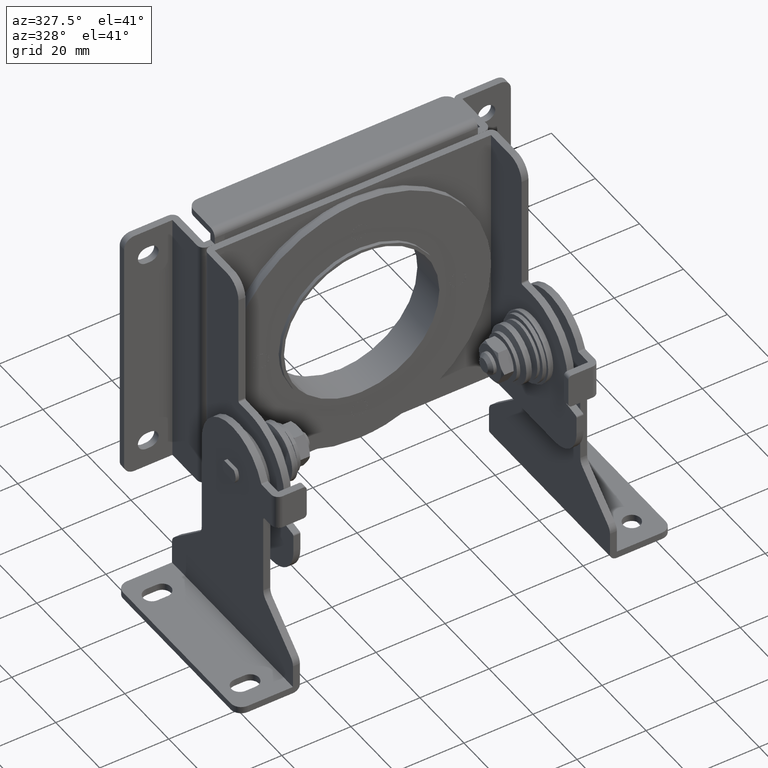
[diagram: clean part render]
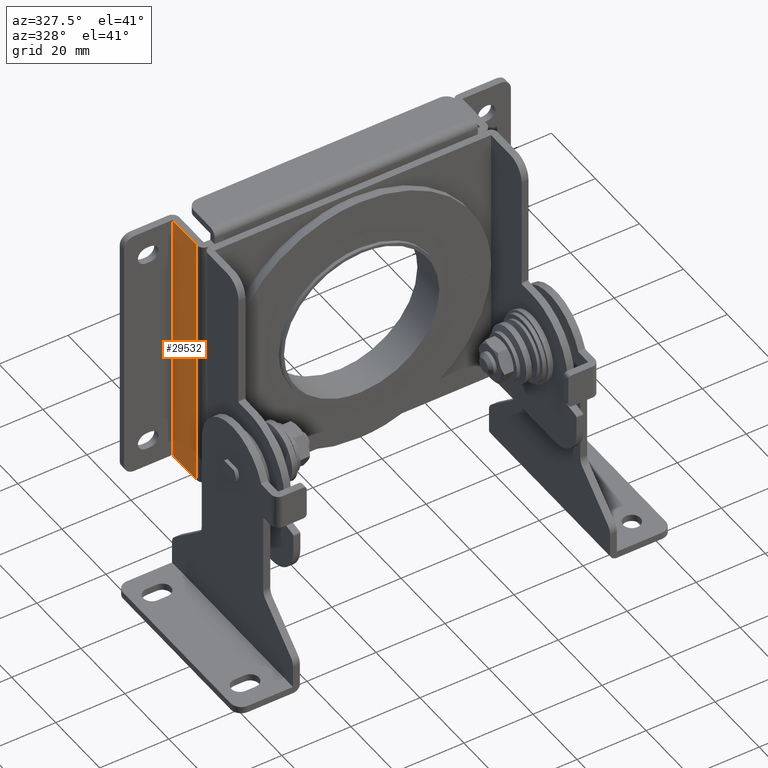
[diagram: same view with one face highlighted and labeled with its STEP entity id]
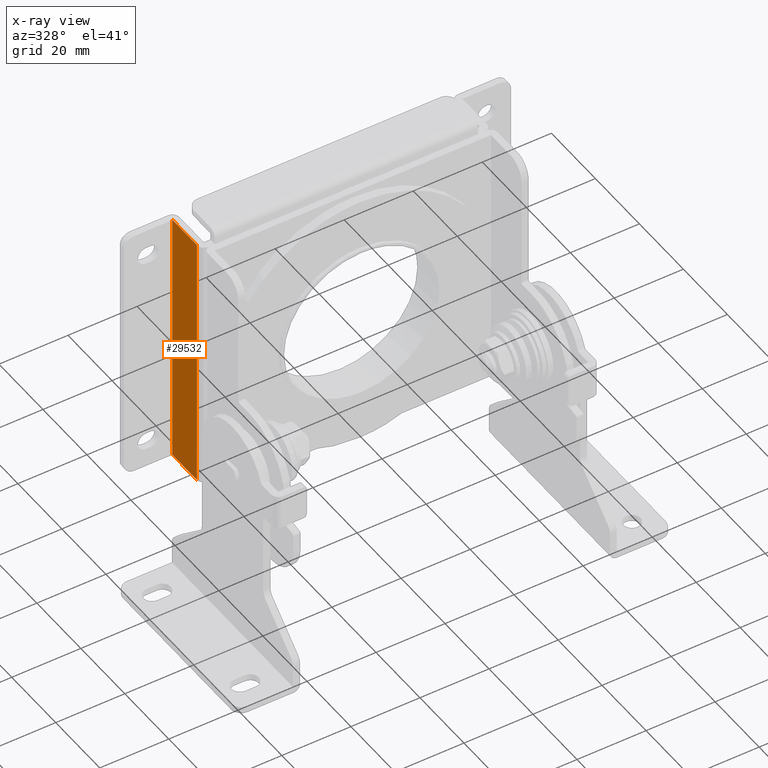
[diagram: x-ray of the same camera — body ghosted, the highlighted face saturated]
A machine part, auxiliary view. The second image highlights one B-rep face of the part: STEP entity #29532.
The next image is the same camera in x-ray: the body ghosted, the highlighted face saturated — about 0% of this face is hidden behind the body in this view.
In plain terms, the highlighted face is a freeform B-spline surface patch.
Its self-contained STEP definition (entity closure, byte-faithful):
#29497=CARTESIAN_POINT('',(-42.0,-13.654444978486049,-41.796199852697249));
#29498=CARTESIAN_POINT('',(-42.0,-13.654444978486049,41.796201891176104));
#29499=CARTESIAN_POINT('',(-42.0,-1.445554723788754,-41.796199852697249));
#29500=CARTESIAN_POINT('',(-42.0,-1.445554723788754,41.796201891176104));
#29501=B_SPLINE_SURFACE_WITH_KNOTS('',1,1,((#29497,#29499),(#29498,#29500)),.UNSPECIFIED.,.F.,.F.,.U.,(2,2),(2,2),(0.0,83.592401743873353),(0.0,12.208890254697300),.UNSPECIFIED.);
#29502=CARTESIAN_POINT('',(-42.0,-13.100000000000000,-38.0));
#29503=VERTEX_POINT('',#29502);
#29504=CARTESIAN_POINT('',(-42.0,-2.0,-38.0));
#29505=VERTEX_POINT('',#29504);
#29506=CARTESIAN_POINT('',(-42.0,-13.100000000000000,-38.0));
#29507=CARTESIAN_POINT('',(-42.0,-2.0,-38.0));
#29508=QUASI_UNIFORM_CURVE('',1,(#29506,#29507),.UNSPECIFIED.,.F.,.U.);
#29509=EDGE_CURVE('',#29503,#29505,#29508,.T.);
#29510=ORIENTED_EDGE('',*,*,#29509,.F.);
#29511=CARTESIAN_POINT('',(-42.0,-13.100000000000000,38.0));
#29512=VERTEX_POINT('',#29511);
#29513=CARTESIAN_POINT('',(-42.0,-13.100000000000000,38.0));
#29514=CARTESIAN_POINT('',(-42.0,-13.100000000000000,-38.0));
#29515=QUASI_UNIFORM_CURVE('',1,(#29513,#29514),.UNSPECIFIED.,.F.,.U.);
#29516=EDGE_CURVE('',#29512,#29503,#29515,.T.);
#29517=ORIENTED_EDGE('',*,*,#29516,.F.);
#29518=CARTESIAN_POINT('',(-42.0,-2.0,38.0));
#29519=VERTEX_POINT('',#29518);
#29520=CARTESIAN_POINT('',(-42.0,-13.100000000000000,38.0));
#29521=CARTESIAN_POINT('',(-42.0,-2.0,38.0));
#29522=QUASI_UNIFORM_CURVE('',1,(#29520,#29521),.UNSPECIFIED.,.F.,.U.);
#29523=EDGE_CURVE('',#29512,#29519,#29522,.T.);
#29524=ORIENTED_EDGE('',*,*,#29523,.T.);
#29525=CARTESIAN_POINT('',(-42.0,-2.0,38.0));
#29526=CARTESIAN_POINT('',(-42.0,-2.0,-38.0));
#29527=QUASI_UNIFORM_CURVE('',1,(#29525,#29526),.UNSPECIFIED.,.F.,.U.);
#29528=EDGE_CURVE('',#29519,#29505,#29527,.T.);
#29529=ORIENTED_EDGE('',*,*,#29528,.T.);
#29530=EDGE_LOOP('',(#29510,#29517,#29524,#29529));
#29531=FACE_OUTER_BOUND('',#29530,.T.);
#29532=ADVANCED_FACE('',(#29531),#29501,.T.);